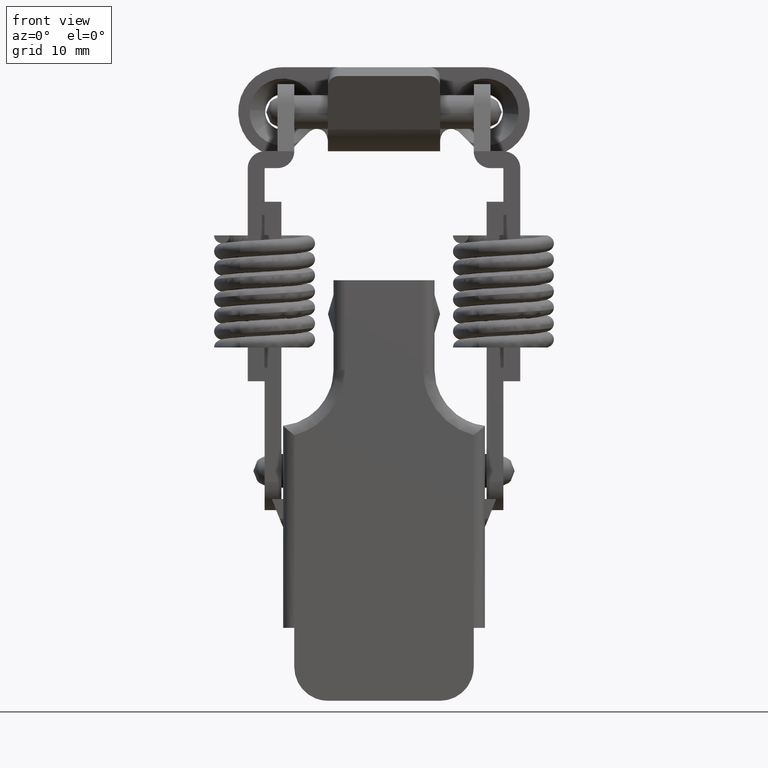
[diagram: clean part render]
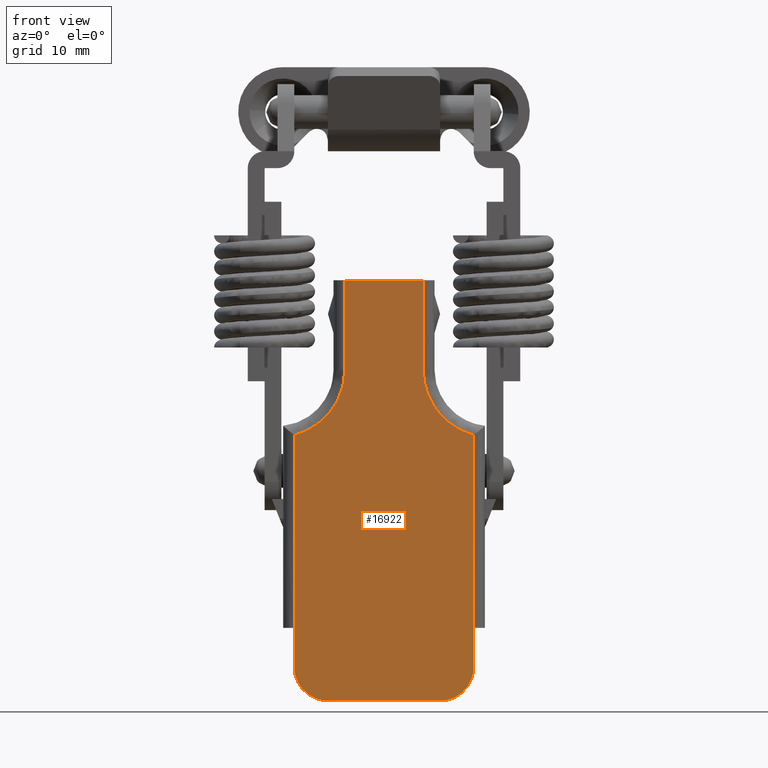
[diagram: same view with one face highlighted and labeled with its STEP entity id]
A machine part, front view. The second image highlights one B-rep face of the part: STEP entity #16922.
In plain terms, the highlighted face is a freeform B-spline surface patch.
Its self-contained STEP definition (entity closure, byte-faithful):
#15253=CARTESIAN_POINT('',(-7.500000000000090,8.0,-28.809475019311151));
#15254=VERTEX_POINT('',#15253);
#15296=CARTESIAN_POINT('',(-7.500000000000090,8.0,-46.0));
#15297=VERTEX_POINT('',#15296);
#15313=CARTESIAN_POINT('',(-7.500000000000090,8.0,-28.809475019311151));
#15314=CARTESIAN_POINT('',(-7.500000000000090,8.0,-46.0));
#15315=QUASI_UNIFORM_CURVE('',1,(#15313,#15314),.UNSPECIFIED.,.F.,.U.);
#15316=EDGE_CURVE('',#15254,#15297,#15315,.T.);
#15338=CARTESIAN_POINT('',(-7.500000000000090,3.500000000000000,-23.0));
#15339=VERTEX_POINT('',#15338);
#15371=CARTESIAN_POINT('',(-7.500000000000090,3.500000000000000,-23.0));
#15372=CARTESIAN_POINT('',(-7.500000000000090,3.500000000000000,-27.647580015448909));
#15373=CARTESIAN_POINT('',(-7.500000000000090,8.000000000000002,-28.809475019311130));
#15381=(BOUNDED_CURVE()B_SPLINE_CURVE(2,(#15371,#15372,#15373),.UNSPECIFIED.,.F.,.U.)CURVE()GEOMETRIC_REPRESENTATION_ITEM()QUASI_UNIFORM_CURVE()RATIONAL_B_SPLINE_CURVE((1.0,0.790569415042095,1.0))REPRESENTATION_ITEM(''));
#15382=EDGE_CURVE('',#15339,#15254,#15381,.T.);
#15403=CARTESIAN_POINT('',(-7.500000000000090,3.500000000000000,-14.999999999999860));
#15404=VERTEX_POINT('',#15403);
#15426=CARTESIAN_POINT('',(-7.500000000000090,3.500000000000000,-14.999999999999860));
#15427=CARTESIAN_POINT('',(-7.500000000000090,3.500000000000000,-23.0));
#15428=QUASI_UNIFORM_CURVE('',1,(#15426,#15427),.UNSPECIFIED.,.F.,.U.);
#15429=EDGE_CURVE('',#15404,#15339,#15428,.T.);
#15450=CARTESIAN_POINT('',(-7.500000000000000,-8.0,-46.0));
#15451=VERTEX_POINT('',#15450);
#15474=CARTESIAN_POINT('',(-7.500000000000090,-8.0,-28.809475019311151));
#15475=VERTEX_POINT('',#15474);
#15508=CARTESIAN_POINT('',(-7.500000000000000,-8.0,-46.0));
#15509=CARTESIAN_POINT('',(-7.500000000000090,-8.0,-28.809475019311151));
#15510=QUASI_UNIFORM_CURVE('',1,(#15508,#15509),.UNSPECIFIED.,.F.,.U.);
#15511=EDGE_CURVE('',#15451,#15475,#15510,.T.);
#15535=CARTESIAN_POINT('',(-7.500000000000090,-3.500000000000000,-23.0));
#15536=VERTEX_POINT('',#15535);
#15552=CARTESIAN_POINT('',(-7.500000000000090,-8.000000000000007,-28.809475019311130));
#15553=CARTESIAN_POINT('',(-7.500000000000090,-3.500000000000000,-27.647580015448913));
#15554=CARTESIAN_POINT('',(-7.500000000000090,-3.500000000000000,-23.0));
#15562=(BOUNDED_CURVE()B_SPLINE_CURVE(2,(#15552,#15553,#15554),.UNSPECIFIED.,.F.,.U.)CURVE()GEOMETRIC_REPRESENTATION_ITEM()QUASI_UNIFORM_CURVE()RATIONAL_B_SPLINE_CURVE((1.0,0.790569415042095,1.0))REPRESENTATION_ITEM(''));
#15563=EDGE_CURVE('',#15475,#15536,#15562,.T.);
#15596=CARTESIAN_POINT('',(-7.500000000000090,-3.500000000000000,-14.999999999999860));
#15597=VERTEX_POINT('',#15596);
#15615=CARTESIAN_POINT('',(-7.500000000000090,-3.500000000000000,-23.0));
#15616=CARTESIAN_POINT('',(-7.500000000000090,-3.500000000000000,-14.999999999999860));
#15617=QUASI_UNIFORM_CURVE('',1,(#15615,#15616),.UNSPECIFIED.,.F.,.U.);
#15618=EDGE_CURVE('',#15536,#15597,#15617,.T.);
#16634=CARTESIAN_POINT('',(-7.500000000000000,8.0,-49.500000000000000));
#16635=VERTEX_POINT('',#16634);
#16636=CARTESIAN_POINT('',(-7.500000000000090,8.0,-46.0));
#16637=CARTESIAN_POINT('',(-7.500000000000000,8.0,-49.500000000000000));
#16638=QUASI_UNIFORM_CURVE('',1,(#16636,#16637),.UNSPECIFIED.,.F.,.U.);
#16639=EDGE_CURVE('',#15297,#16635,#16638,.T.);
#16668=CARTESIAN_POINT('',(-7.500000000000000,-8.0,-49.500000000000000));
#16669=VERTEX_POINT('',#16668);
#16670=CARTESIAN_POINT('',(-7.500000000000000,-8.0,-49.500000000000000));
#16671=CARTESIAN_POINT('',(-7.500000000000000,-8.0,-46.0));
#16672=QUASI_UNIFORM_CURVE('',1,(#16670,#16671),.UNSPECIFIED.,.F.,.U.);
#16673=EDGE_CURVE('',#16669,#15451,#16672,.T.);
#16711=CARTESIAN_POINT('',(-7.500000000000000,-5.0,-52.500000000000000));
#16712=VERTEX_POINT('',#16711);
#16713=CARTESIAN_POINT('',(-7.500000000000000,-5.0,-52.500000000000007));
#16714=CARTESIAN_POINT('',(-7.500000000000000,-8.0,-52.500000000000007));
#16715=CARTESIAN_POINT('',(-7.500000000000000,-8.0,-49.500000000000000));
#16723=(BOUNDED_CURVE()B_SPLINE_CURVE(2,(#16713,#16714,#16715),.UNSPECIFIED.,.F.,.U.)CURVE()GEOMETRIC_REPRESENTATION_ITEM()QUASI_UNIFORM_CURVE()RATIONAL_B_SPLINE_CURVE((1.0,0.707106781186548,1.0))REPRESENTATION_ITEM(''));
#16724=EDGE_CURVE('',#16712,#16669,#16723,.T.);
#16755=CARTESIAN_POINT('',(-7.500000000000000,5.0,-52.500000000000000));
#16756=VERTEX_POINT('',#16755);
#16757=CARTESIAN_POINT('',(-7.500000000000000,5.0,-52.500000000000000));
#16758=CARTESIAN_POINT('',(-7.500000000000000,-5.0,-52.500000000000000));
#16759=QUASI_UNIFORM_CURVE('',1,(#16757,#16758),.UNSPECIFIED.,.F.,.U.);
#16760=EDGE_CURVE('',#16756,#16712,#16759,.T.);
#16792=CARTESIAN_POINT('',(-7.500000000000000,8.0,-49.500000000000000));
#16793=CARTESIAN_POINT('',(-7.500000000000000,8.0,-52.500000000000007));
#16794=CARTESIAN_POINT('',(-7.500000000000000,5.0,-52.500000000000007));
#16802=(BOUNDED_CURVE()B_SPLINE_CURVE(2,(#16792,#16793,#16794),.UNSPECIFIED.,.F.,.U.)CURVE()GEOMETRIC_REPRESENTATION_ITEM()QUASI_UNIFORM_CURVE()RATIONAL_B_SPLINE_CURVE((1.0,0.707106781186548,1.0))REPRESENTATION_ITEM(''));
#16803=EDGE_CURVE('',#16635,#16756,#16802,.T.);
#16899=CARTESIAN_POINT('',(-7.500000000000090,8.799199968988896,-13.126875072682131));
#16900=CARTESIAN_POINT('',(-7.500000000000090,-8.799200398142336,-13.126875072682131));
#16901=CARTESIAN_POINT('',(-7.500000000000090,8.799199968988896,-54.373125933146099));
#16902=CARTESIAN_POINT('',(-7.500000000000090,-8.799200398142336,-54.373125933146099));
#16903=B_SPLINE_SURFACE_WITH_KNOTS('',1,1,((#16899,#16901),(#16900,#16902)),.UNSPECIFIED.,.F.,.F.,.U.,(2,2),(2,2),(0.0,17.598400367131230),(0.0,41.246250860463967),.UNSPECIFIED.);
#16904=ORIENTED_EDGE('',*,*,#15382,.T.);
#16905=ORIENTED_EDGE('',*,*,#15316,.T.);
#16906=ORIENTED_EDGE('',*,*,#16639,.T.);
#16907=ORIENTED_EDGE('',*,*,#16803,.T.);
#16908=ORIENTED_EDGE('',*,*,#16760,.T.);
#16909=ORIENTED_EDGE('',*,*,#16724,.T.);
#16910=ORIENTED_EDGE('',*,*,#16673,.T.);
#16911=ORIENTED_EDGE('',*,*,#15511,.T.);
#16912=ORIENTED_EDGE('',*,*,#15563,.T.);
#16913=ORIENTED_EDGE('',*,*,#15618,.T.);
#16914=CARTESIAN_POINT('',(-7.500000000000090,-3.500000000000000,-14.999999999999860));
#16915=CARTESIAN_POINT('',(-7.500000000000090,3.500000000000000,-14.999999999999860));
#16916=QUASI_UNIFORM_CURVE('',1,(#16914,#16915),.UNSPECIFIED.,.F.,.U.);
#16917=EDGE_CURVE('',#15597,#15404,#16916,.T.);
#16918=ORIENTED_EDGE('',*,*,#16917,.T.);
#16919=ORIENTED_EDGE('',*,*,#15429,.T.);
#16920=EDGE_LOOP('',(#16904,#16905,#16906,#16907,#16908,#16909,#16910,#16911,#16912,#16913,#16918,#16919));
#16921=FACE_OUTER_BOUND('',#16920,.T.);
#16922=ADVANCED_FACE('',(#16921),#16903,.F.);